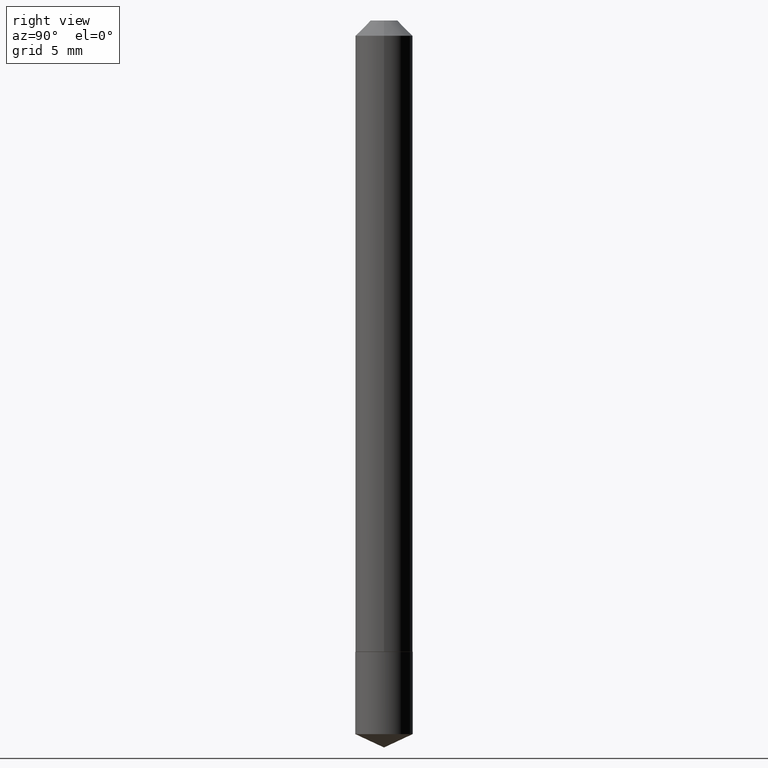
[diagram: clean part render]
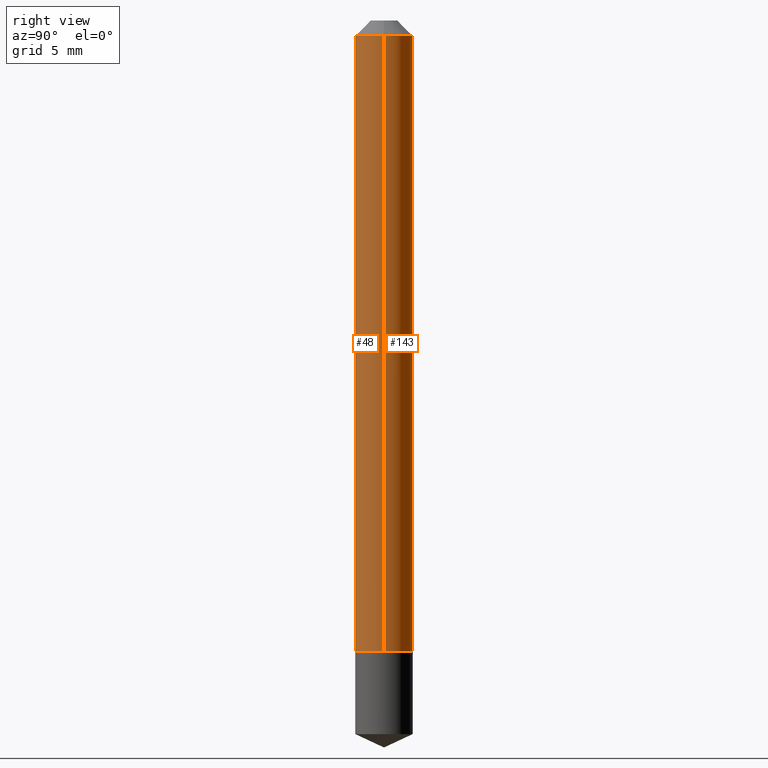
[diagram: same view with one multi-face feature highlighted, each face labeled with its STEP entity id]
A machine part, right view. The highlighted faces form ONE feature: a constant-radius fillet chain: 2 tangent blend faces with common blend radius 1.4999 mm. The faces share edges in the B-rep.
Their STEP definitions:
[1] entity #143 (Cylinder):
#13 = EDGE_CURVE ( 'NONE', #281, #300, #200, .T. ) ;
#16 = CARTESIAN_POINT ( 'NONE',  ( 0.05905000000000000526, -5.214527379562231333E-16, -0.03125000000000021511 ) ) ;
#27 = ORIENTED_EDGE ( 'NONE', *, *, #232, .T. ) ;
#32 = CARTESIAN_POINT ( 'NONE',  ( -0.05905000000000000526, -1.902172317830880095E-15, -0.03125000000000021511 ) ) ;
#38 = ORIENTED_EDGE ( 'NONE', *, *, #126, .T. ) ;
#56 = CARTESIAN_POINT ( 'NONE',  ( -0.05905000000000015792, -4.114811329289252948E-15, -1.298699999999999966 ) ) ;
#64 = DIRECTION ( 'NONE',  ( -2.445468806185136597E-29, 3.491481338843145583E-15, 1.000000000000000000 ) ) ;
#67 = CARTESIAN_POINT ( 'NONE',  ( 3.175930338592637077E-29, -4.534386814755593230E-15, -1.298699999999999966 ) ) ;
#71 = CARTESIAN_POINT ( 'NONE',  ( 7.642090019328604414E-31, -1.091087918388490513E-16, -0.03125000000000021511 ) ) ;
#94 = VERTEX_POINT ( 'NONE', #334 ) ;
#106 = CYLINDRICAL_SURFACE ( 'NONE', #206, 0.05905000000000008159 ) ;
#112 = CARTESIAN_POINT ( 'NONE',  ( -0.05905000000000008159, 4.195754854663397395E-16, -2.904631170795525745E-30 ) ) ;
#126 = EDGE_CURVE ( 'NONE', #94, #371, #135, .T. ) ;
#135 = CIRCLE ( 'NONE', #380, 0.05905000000000015792 ) ;
#143 = ADVANCED_FACE ( 'NONE', ( #157 ), #106, .T. ) ;
#151 = LINE ( 'NONE', #390, #331 ) ;
#157 = FACE_OUTER_BOUND ( 'NONE', #266, .T. ) ;
#166 = CARTESIAN_POINT ( 'NONE',  ( 0.000000000000000000, 0.000000000000000000, 0.000000000000000000 ) ) ;
#187 = DIRECTION ( 'NONE',  ( -2.445468806185136597E-29, 3.491481338843145583E-15, 1.000000000000000000 ) ) ;
#200 = CIRCLE ( 'NONE', #291, 0.05905000000000000526 ) ;
#206 = AXIS2_PLACEMENT_3D ( 'NONE', #166, #342, #259 ) ;
#232 = EDGE_CURVE ( 'NONE', #371, #300, #377, .T. ) ;
#242 = DIRECTION ( 'NONE',  ( -2.445468806185136877E-29, 3.491481338843145188E-15, 1.000000000000000000 ) ) ;
#251 = DIRECTION ( 'NONE',  ( 1.000000000000000000, -6.982962677686270655E-15, 0.000000000000000000 ) ) ;
#255 = ORIENTED_EDGE ( 'NONE', *, *, #13, .F. ) ;
#259 = DIRECTION ( 'NONE',  ( 1.000000000000000000, -6.982962677686267499E-15, 4.876176775795936353E-29 ) ) ;
#266 = EDGE_LOOP ( 'NONE', ( #38, #27, #255, #323 ) ) ;
#281 = VERTEX_POINT ( 'NONE', #16 ) ;
#283 = DIRECTION ( 'NONE',  ( 1.000000000000000000, -6.982962677686267499E-15, 0.000000000000000000 ) ) ;
#291 = AXIS2_PLACEMENT_3D ( 'NONE', #71, #64, #283 ) ;
#300 = VERTEX_POINT ( 'NONE', #32 ) ;
#323 = ORIENTED_EDGE ( 'NONE', *, *, #388, .F. ) ;
#331 = VECTOR ( 'NONE', #242, 39.37007874015748143 ) ;
#334 = CARTESIAN_POINT ( 'NONE',  ( 0.05905000000000015792, -4.946730760872968939E-15, -1.298699999999999966 ) ) ;
#342 = DIRECTION ( 'NONE',  ( -2.445468806185136597E-29, 3.491481338843145583E-15, 1.000000000000000000 ) ) ;
#348 = DIRECTION ( 'NONE',  ( -2.445468806185136877E-29, 3.491481338843145188E-15, 1.000000000000000000 ) ) ;
#371 = VERTEX_POINT ( 'NONE', #56 ) ;
#377 = LINE ( 'NONE', #112, #385 ) ;
#380 = AXIS2_PLACEMENT_3D ( 'NONE', #67, #187, #251 ) ;
#385 = VECTOR ( 'NONE', #348, 39.37007874015748143 ) ;
#388 = EDGE_CURVE ( 'NONE', #94, #281, #151, .T. ) ;
#390 = CARTESIAN_POINT ( 'NONE',  ( 0.05905000000000008159, -4.123439461173746736E-16, 2.879382386107504424E-30 ) ) ;
[2] entity #48 (Cylinder):
#9 = ORIENTED_EDGE ( 'NONE', *, *, #40, .F. ) ;
#11 = AXIS2_PLACEMENT_3D ( 'NONE', #125, #127, #248 ) ;
#16 = CARTESIAN_POINT ( 'NONE',  ( 0.05905000000000000526, -5.214527379562231333E-16, -0.03125000000000021511 ) ) ;
#32 = CARTESIAN_POINT ( 'NONE',  ( -0.05905000000000000526, -1.902172317830880095E-15, -0.03125000000000021511 ) ) ;
#33 = DIRECTION ( 'NONE',  ( 1.000000000000000000, -6.982962677686270655E-15, 0.000000000000000000 ) ) ;
#36 = CARTESIAN_POINT ( 'NONE',  ( 3.175930338592637077E-29, -4.534386814755593230E-15, -1.298699999999999966 ) ) ;
#40 = EDGE_CURVE ( 'NONE', #300, #281, #302, .T. ) ;
#48 = ADVANCED_FACE ( 'NONE', ( #129 ), #218, .T. ) ;
#56 = CARTESIAN_POINT ( 'NONE',  ( -0.05905000000000015792, -4.114811329289252948E-15, -1.298699999999999966 ) ) ;
#57 = EDGE_CURVE ( 'NONE', #371, #94, #118, .T. ) ;
#59 = AXIS2_PLACEMENT_3D ( 'NONE', #182, #306, #183 ) ;
#93 = ORIENTED_EDGE ( 'NONE', *, *, #232, .F. ) ;
#94 = VERTEX_POINT ( 'NONE', #334 ) ;
#112 = CARTESIAN_POINT ( 'NONE',  ( -0.05905000000000008159, 4.195754854663397395E-16, -2.904631170795525745E-30 ) ) ;
#118 = CIRCLE ( 'NONE', #337, 0.05905000000000015792 ) ;
#125 = CARTESIAN_POINT ( 'NONE',  ( 7.642090019328604414E-31, -1.091087918388490513E-16, -0.03125000000000021511 ) ) ;
#127 = DIRECTION ( 'NONE',  ( -2.445468806185136597E-29, 3.491481338843145583E-15, 1.000000000000000000 ) ) ;
#129 = FACE_OUTER_BOUND ( 'NONE', #363, .T. ) ;
#151 = LINE ( 'NONE', #390, #331 ) ;
#156 = ORIENTED_EDGE ( 'NONE', *, *, #388, .T. ) ;
#182 = CARTESIAN_POINT ( 'NONE',  ( 0.000000000000000000, 0.000000000000000000, 0.000000000000000000 ) ) ;
#183 = DIRECTION ( 'NONE',  ( 1.000000000000000000, -6.982962677686267499E-15, 4.876176775795936353E-29 ) ) ;
#188 = DIRECTION ( 'NONE',  ( -2.445468806185136597E-29, 3.491481338843145583E-15, 1.000000000000000000 ) ) ;
#218 = CYLINDRICAL_SURFACE ( 'NONE', #59, 0.05905000000000008159 ) ;
#232 = EDGE_CURVE ( 'NONE', #371, #300, #377, .T. ) ;
#242 = DIRECTION ( 'NONE',  ( -2.445468806185136877E-29, 3.491481338843145188E-15, 1.000000000000000000 ) ) ;
#248 = DIRECTION ( 'NONE',  ( 1.000000000000000000, -6.982962677686267499E-15, 0.000000000000000000 ) ) ;
#281 = VERTEX_POINT ( 'NONE', #16 ) ;
#285 = ORIENTED_EDGE ( 'NONE', *, *, #57, .T. ) ;
#300 = VERTEX_POINT ( 'NONE', #32 ) ;
#302 = CIRCLE ( 'NONE', #11, 0.05905000000000000526 ) ;
#306 = DIRECTION ( 'NONE',  ( -2.445468806185136597E-29, 3.491481338843145583E-15, 1.000000000000000000 ) ) ;
#331 = VECTOR ( 'NONE', #242, 39.37007874015748143 ) ;
#334 = CARTESIAN_POINT ( 'NONE',  ( 0.05905000000000015792, -4.946730760872968939E-15, -1.298699999999999966 ) ) ;
#337 = AXIS2_PLACEMENT_3D ( 'NONE', #36, #188, #33 ) ;
#348 = DIRECTION ( 'NONE',  ( -2.445468806185136877E-29, 3.491481338843145188E-15, 1.000000000000000000 ) ) ;
#363 = EDGE_LOOP ( 'NONE', ( #93, #285, #156, #9 ) ) ;
#371 = VERTEX_POINT ( 'NONE', #56 ) ;
#377 = LINE ( 'NONE', #112, #385 ) ;
#385 = VECTOR ( 'NONE', #348, 39.37007874015748143 ) ;
#388 = EDGE_CURVE ( 'NONE', #94, #281, #151, .T. ) ;
#390 = CARTESIAN_POINT ( 'NONE',  ( 0.05905000000000008159, -4.123439461173746736E-16, 2.879382386107504424E-30 ) ) ;